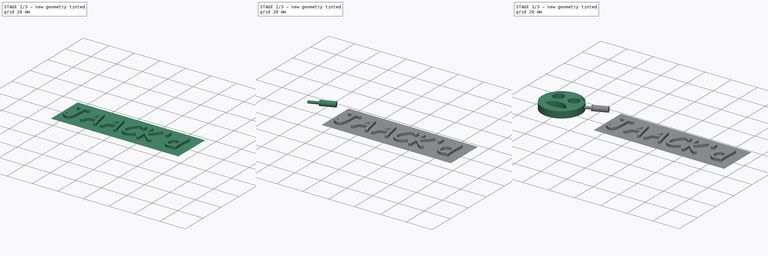
[diagram: build sequence overview — one tinted view per stage of 3, left to right]
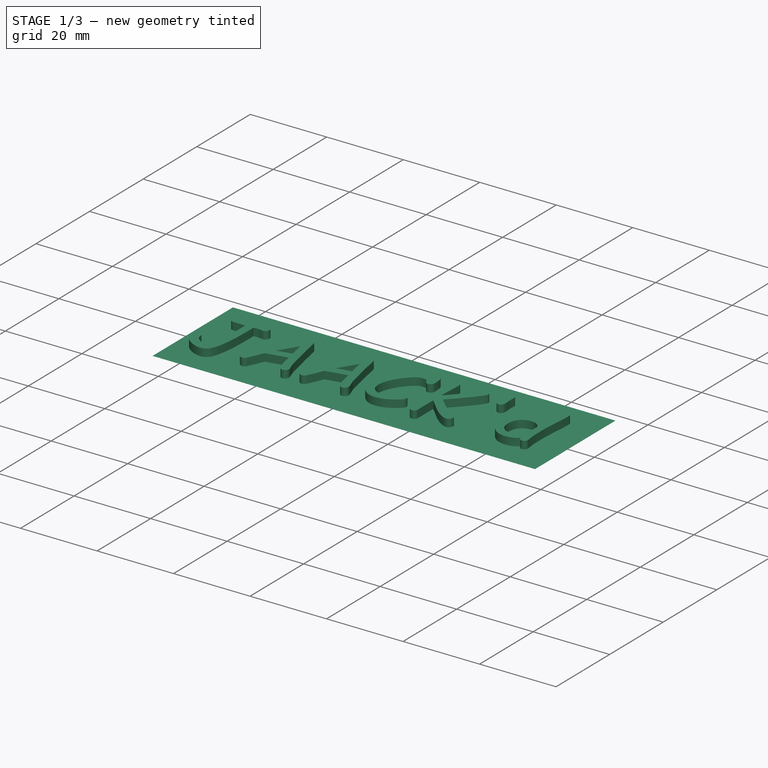
[diagram: stage 1 of 3 — iso view after this stage's code; geometry added in this stage tinted green]
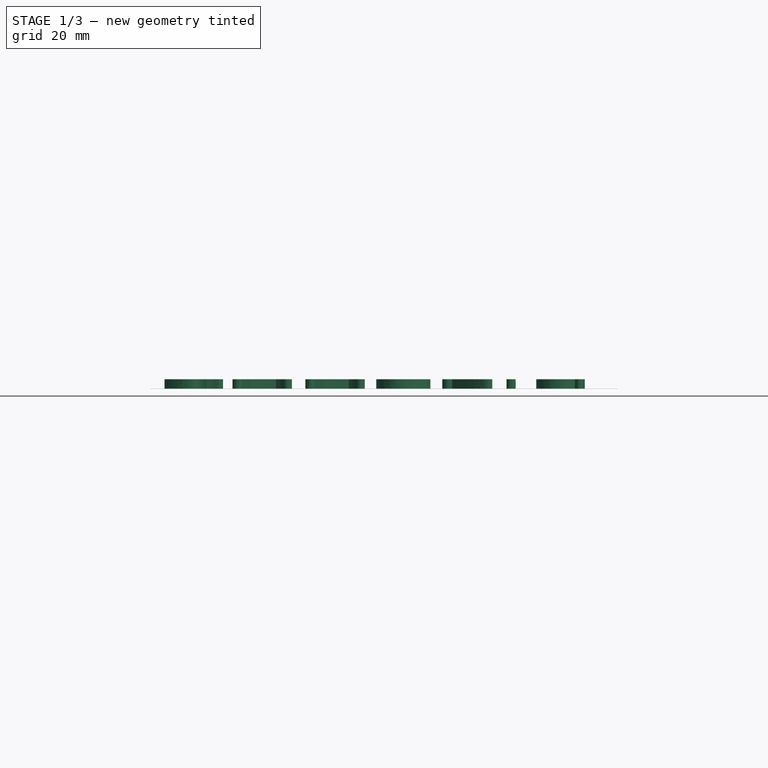
[diagram: stage 1 of 3 — front view after this stage's code; geometry added in this stage tinted green]
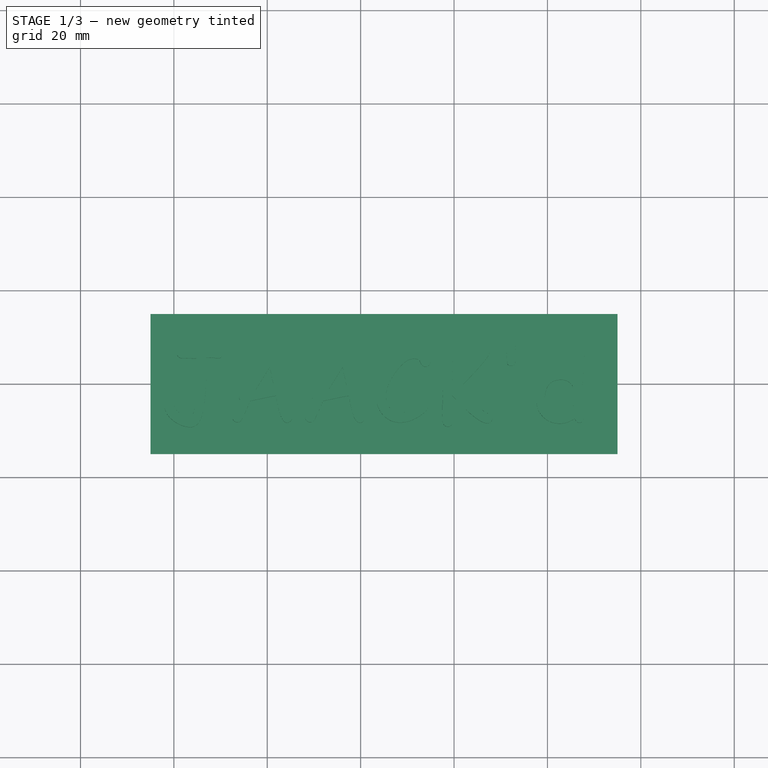
[diagram: stage 1 of 3 — top view after this stage's code; geometry added in this stage tinted green]
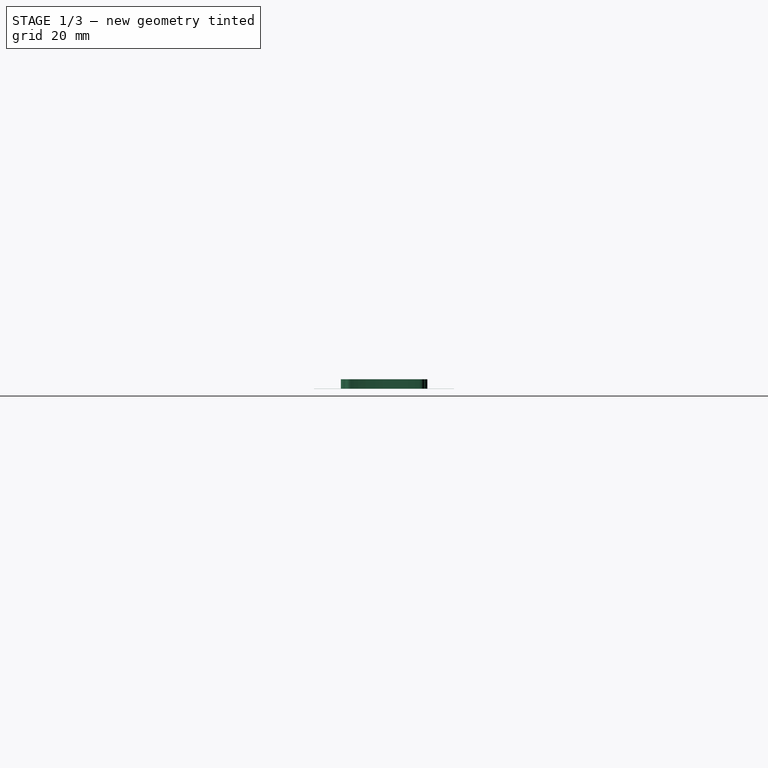
[diagram: stage 1 of 3 — right view after this stage's code; geometry added in this stage tinted green]
FCSTD DOCUMENT  (FreeCAD 1.0R39109 (Git))
Label: Jaackd Logo 2d
License: Creative Commons Attribution 4.0
LicenseURL: https://creativecommons.org/licenses/by/4.0/
objects: PartDesign::Pad×3, Part::Cylinder×3, Sketcher::SketchObject×2, PartDesign::Body×2, App::Part×2, Spreadsheet::Sheet×1, PartDesign::Boolean×1, Part::Part2DObjectPython×1, Measure::MeasurePython×1
note: 21 computed .brp shape members not serialized (recipe doc carries the construction recipe); baked Part::Feature solids carry a one-line shape summary decoded from their .brp

FEATURE [PartDesign::Body] Body
  AllowCompound = false
  Group = -> [Sketch,Pad,Boolean]
  Origin = -> Origin001
  Tip = -> Boolean
FEATURE [App::Part] Part  label="Logo"
  Group = -> [Body]
  Origin = -> Origin
FEATURE [Sketcher::SketchObject] Sketch001
  ArcFitTolerance = 1e-06
  AttachmentSupport = -> [XY_Plane003]
  FullyConstrained = true
  MakeInternals = false
  MapMode = 5
  sketch-geometry (4):
    g0: LineSegment StartX=35 StartY=15 StartZ=0 EndX=35 EndY=-15 EndZ=0
    g1: LineSegment StartX=35 StartY=-15 StartZ=0 EndX=135 EndY=-15 EndZ=0
    g2: LineSegment StartX=135 StartY=-15 StartZ=0 EndX=135 EndY=15 EndZ=0
    g3: LineSegment StartX=135 StartY=15 StartZ=0 EndX=35 EndY=15 EndZ=0
  constraints (11):
    c: Coincident(g0,g1)
    c: Coincident(g1,g2)
    c: Coincident(g2,g3)
    c: Coincident(g3,g0)
    c: Vertical(g0)
    c: Horizontal(g1)
    c: Horizontal(g3)
    c: Distance(g0,g2) = 100
    c: Distance(g1,g3) = 30
    c: DistanceX(g-1,g0) = 35
    c: Symmetric(g2,g1,g-1)
FEATURE [PartDesign::Pad] Pad001
  Direction = (0,0,1)
  Length = 0.01
  Length2 = 10
  Profile = -> Sketch001
  ReferenceAxis = -> Sketch001 [N_Axis]
  Suppressed = false
  Type = 0
  expr: Length = <<config>>.namePlateThickness
FEATURE [Part::Part2DObjectPython] ShapeString  # Draft 2D object (typed FeaturePython)
  FontFile = <path>
  Fuse = false
  Justification = 6
  JustificationReference = 0
  KeepLeftMargin = false
  MakeFace = true
  ObliqueAngle = 0
  Placement = pos=(38,-8,0.01) rot=(0,0,1;0rad)
  ScaleToSize = true
  Size = 16
  String = JAACK'd
  Tracking = 0
  expr: .Placement.Base.z = <<config>>.namePlateThickness
FEATURE [PartDesign::Pad] Pad002
  BaseFeature = -> Pad001
  Direction = (0,0,1)
  Length = 2
  Length2 = 10
  Profile = -> ShapeString
  ReferenceAxis = -> ShapeString [N_Axis]
  Suppressed = false
  Type = 0
FEATURE [PartDesign::Body] Body001  label="NamePlateBody"
  AllowCompound = false
  Group = -> [Sketch001,Pad001,ShapeString,Pad002]
  Origin = -> Origin003
  Tip = -> Pad002
FEATURE [App::Part] Part001  label="NamePlate"
  Group = -> [Body001]
  Origin = -> Origin002
FEATURE [Measure::MeasurePython] Center_of_Mass  label="Center_of_Mass: "  # WARN: FeaturePython — macro-defined, semantics opaque (R4)
  Element = -> Part001 [Body001.Pad001.Sketch001.]
  Placement = pos=(85,0,0) rot=(0,0,1;0rad)
  Result = (85,0,0)
note: 1 file-system path scrubbed to <path> (originals preserved in the JSON sidecar)
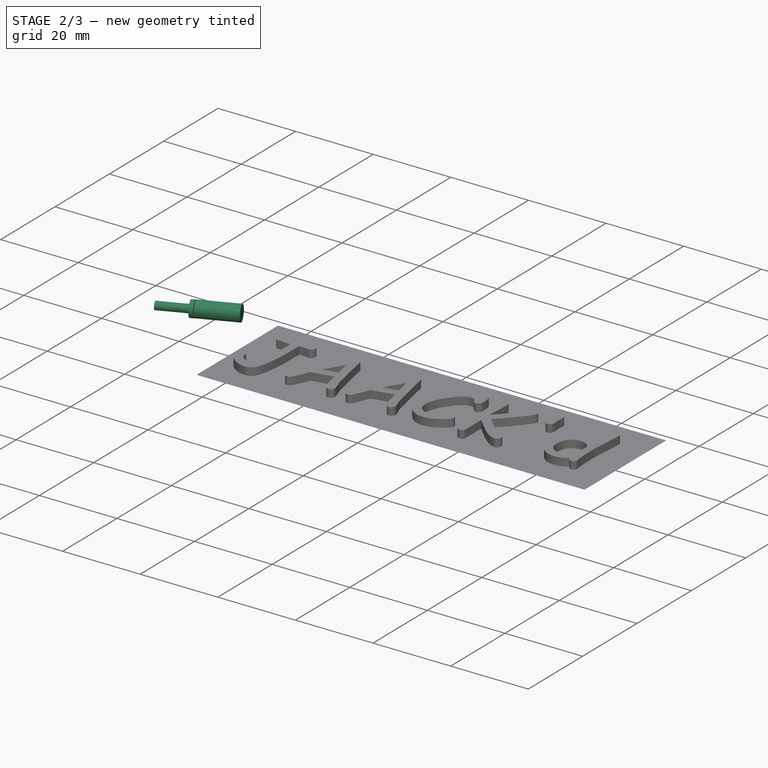
[diagram: stage 2 of 3 — iso view after this stage's code; geometry added in this stage tinted green]
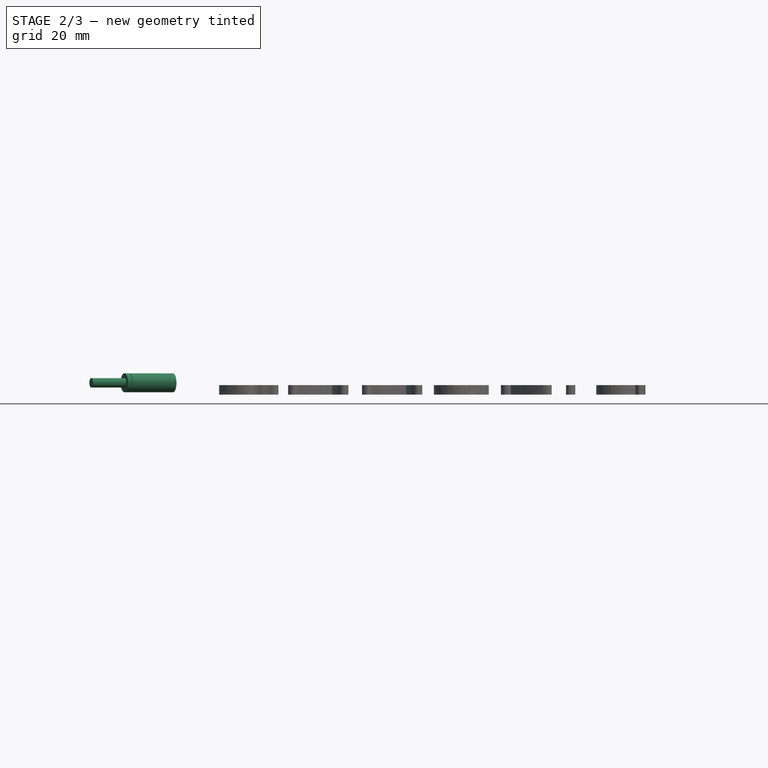
[diagram: stage 2 of 3 — front view after this stage's code; geometry added in this stage tinted green]
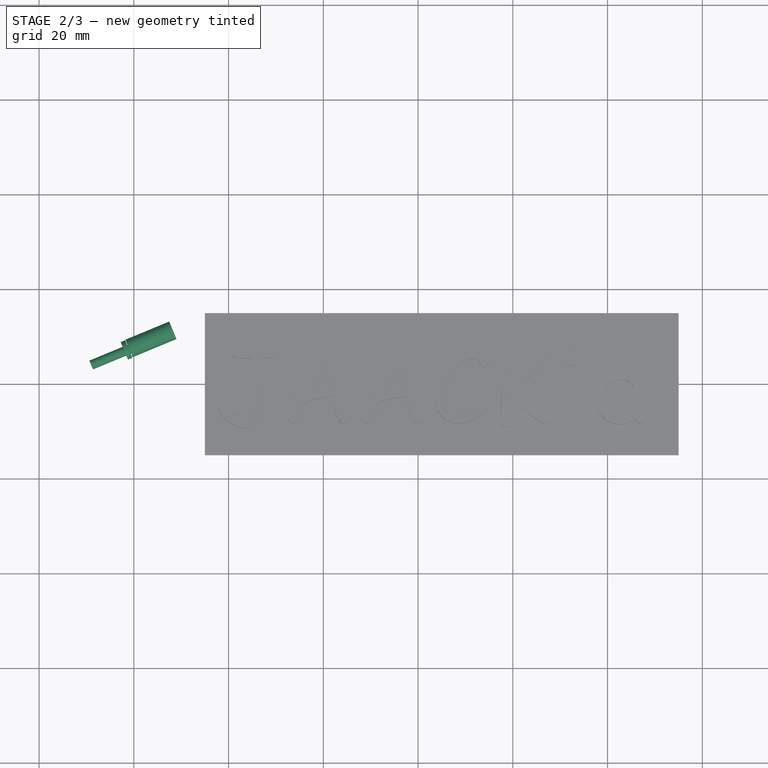
[diagram: stage 2 of 3 — top view after this stage's code; geometry added in this stage tinted green]
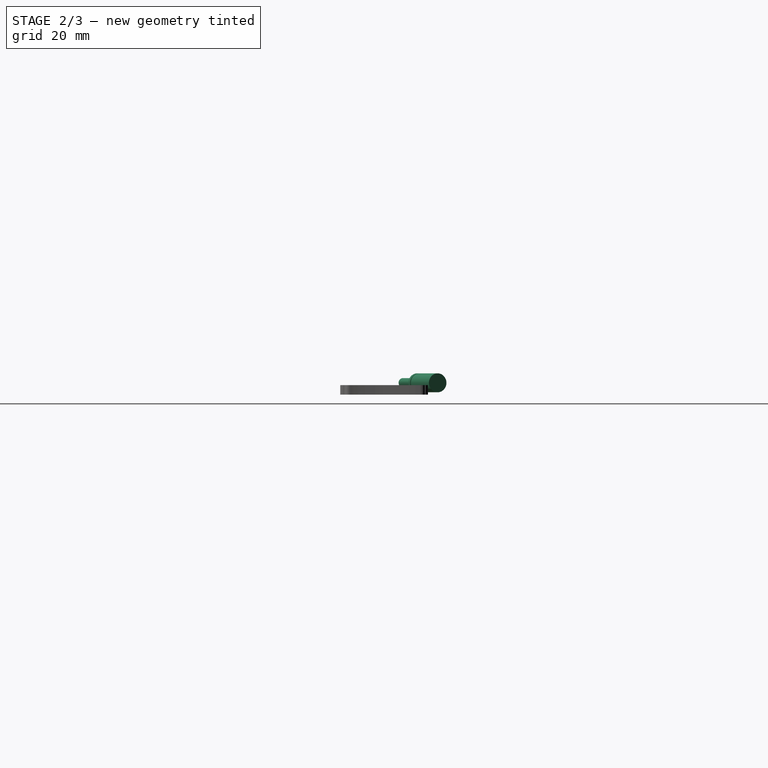
[diagram: stage 2 of 3 — right view after this stage's code; geometry added in this stage tinted green]
FEATURE [Part::Cylinder] Cylinder
  Angle = 360
  AttacherType = Attacher::AttachEngine3D
  FirstAngle = 0
  Height = 13
  Placement = pos=(11,4,2.5) rot=(-0.19148,0.962637,0.19148;1.60887rad)
  Radius = 1
  SecondAngle = 0
FEATURE [Part::Cylinder] Cylinder001
  Angle = 360
  AttacherType = Attacher::AttachEngine3D
  FirstAngle = 0
  Height = 1
  Placement = pos=(18,7,2.5) rot=(-0.19148,0.962637,0.19148;1.60887rad)
  Radius = 2
  SecondAngle = 0
FEATURE [Part::Cylinder] Cylinder002
  Angle = 360
  AttacherType = Attacher::AttachEngine3D
  FirstAngle = 0
  Height = 10
  Placement = pos=(19,7.5,2.5) rot=(-0.19148,0.962637,0.19148;1.60887rad)
  Radius = 2
  SecondAngle = 0
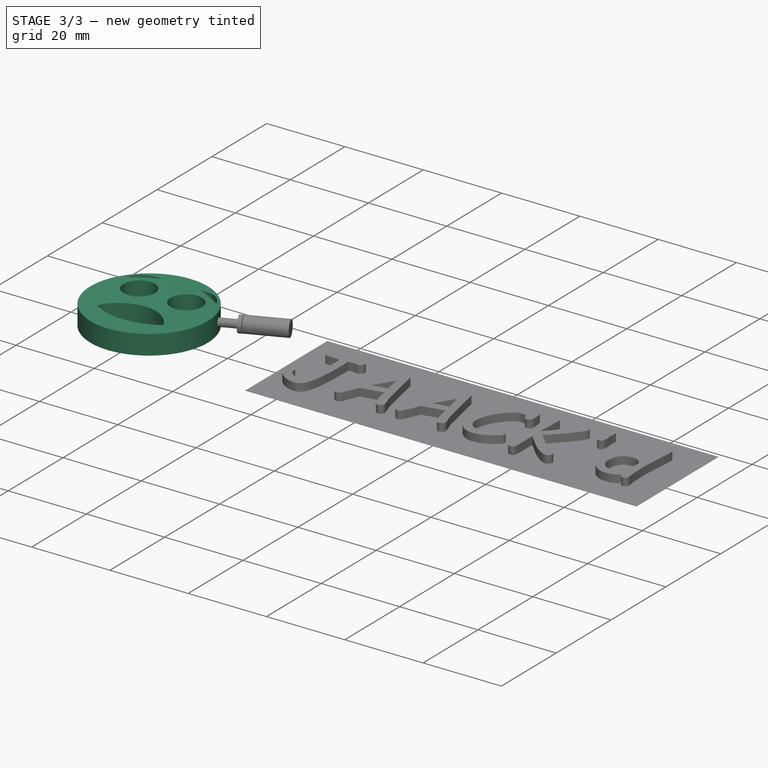
[diagram: stage 3 of 3 — iso view after this stage's code; geometry added in this stage tinted green]
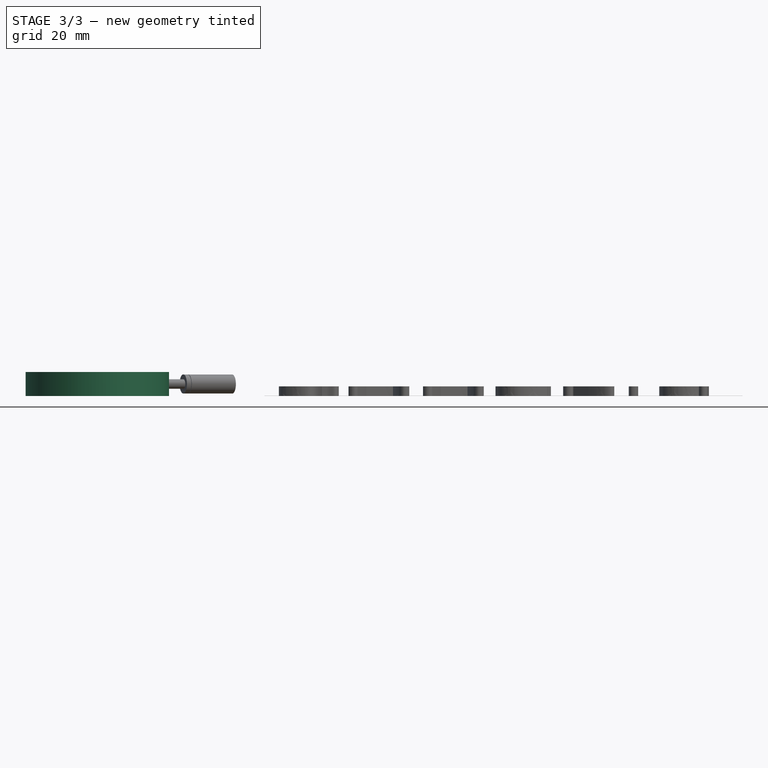
[diagram: stage 3 of 3 — front view after this stage's code; geometry added in this stage tinted green]
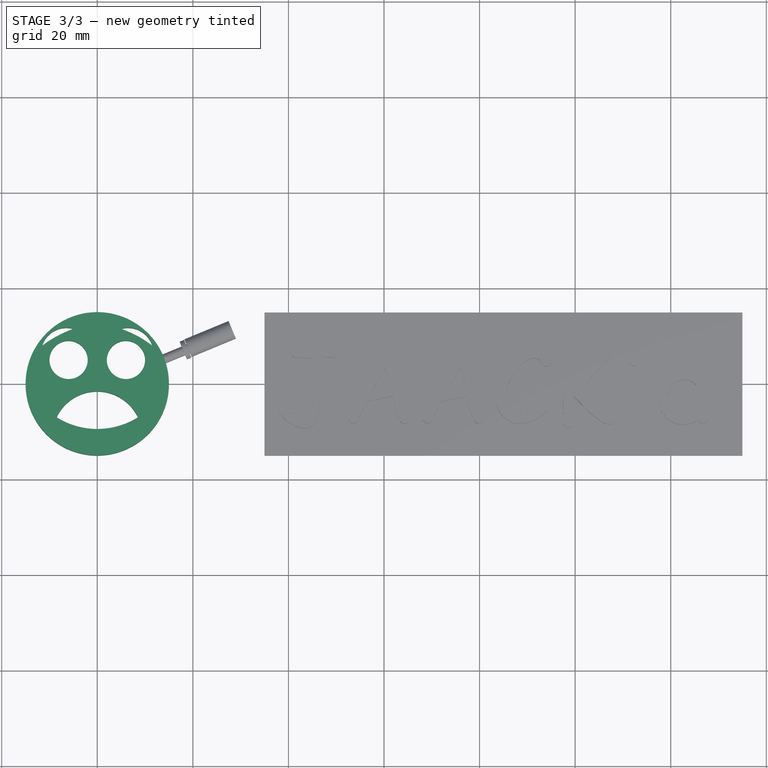
[diagram: stage 3 of 3 — top view after this stage's code; geometry added in this stage tinted green]
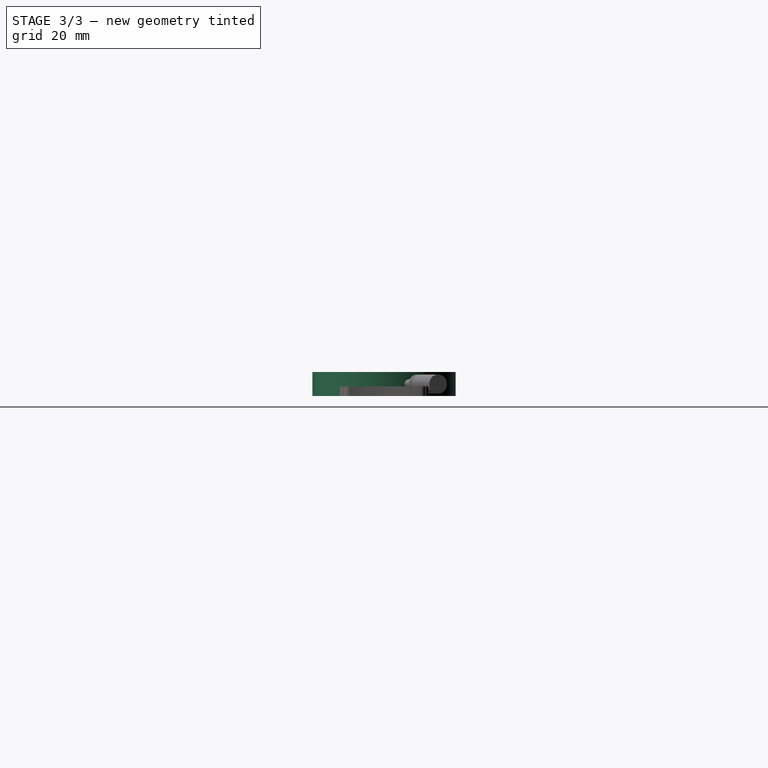
[diagram: stage 3 of 3 — right view after this stage's code; geometry added in this stage tinted green]
FEATURE [Spreadsheet::Sheet] Spreadsheet  label="config"
  cells = A2='outerDiameter; B2='mm; C2(outerDiameter)=30; A3='faceEyeRatio; B3='none; C3(faceEyeRatio)==30 / 8; A4='eyeDiameter; B4='mm; C4(eyeDiameter)==outerDiameter / faceEyeRatio; A5='faceIPRatio; B5='none; C5(faceIPRatio)==30 / 12; A6='interpupilaryDistance; B6='mm; C6(interpupilaryDistance)==outerDiameter / faceIPRatio; A7='faceIESRatio; B7='none; C7(faceIESRatio)==30 / 10; A8='innerEyebrowSeparation; B8='mm; C8(innerEyebrowSeparation)==outerDiameter / faceIESRatio; A9='faceOESRatio; B9='none; C9(faceOESRatio)==30 / 23; A10='outerEyebrowSeparation; B10='mm; C10(outerEyebrowSeparation)==outerDiameter / faceOESRatio; A11='faceIEHRatio; B11='none; C11(faceIEHRatio)==30 / 11.5; A12='innerEyebrowHeight; B12='mm; C12(innerEyebrowHeight)==outerDiameter / faceIEHRatio; A13='faceOEHRatio; B13='none; C13(faceOEHRatio)==30 / 8; A14='outerEyebrowHeight; B14='mm; C14(outerEyebrowHeight)==outerDiameter / faceOEHRatio; A15='facePHRatio; B15='none; C15(facePHRatio)==30 / 5; A16='pupilHeight; B16='mm; C16(pupilHeight)==outerDiameter / facePHRatio; A17='faceBTACHRatio; B17='none; C17(faceBTACHRatio)==30 / 6.4; A18='browTopArcCenterHeight; B18='mm; C18(browTopArcCenterHeight)==outerDiameter / faceBTACHRatio; A19='faceBBACHRatio; B19='none; C19(faceBBACHRatio)==30 / 10.4; A20='browBottomArcCenterHeight; B20='mm; C20(browBottomArcCenterHeight)==outerDiameter / faceBBACHRatio; A21='faceMBAHRatio; B21='none; C21(faceMBAHRatio)==30 / 6.5; A22='mouthBottomArcHeight; B22='mm; C22(mouthBottomArcHeight)==outerDiameter / faceMBAHRatio; A23='faceMTAHRatio; B23='none; C23(faceMTAHRatio)==-30 / 11; A24='mouthTopArcHeight; B24='mm; C24(mouthTopArcHeight)==outerDiameter / faceMTAHRatio; A25='faceMWRatio; B25='none; C25(faceMWRatio)==30 / 17; A26='mouthWidth; B26='mm; C26(mouthWidth)==outerDiameter / faceMWRatio; A27='faceMHRatio; B27='none; C27(faceMHRatio)==30 / 7; A28='mouthHeight; B28='mm; C28(mouthHeight)==outerDiameter / faceMHRatio; A29='namePlateThickness; B29='mm; C29(namePlateThickness)=0.01
FEATURE [Sketcher::SketchObject] Sketch
  ArcFitTolerance = 1e-06
  AttachmentSupport = -> [XY_Plane001]
  FullyConstrained = true
  MakeInternals = false
  MapMode = 5
  expr: Constraints[0] = <<config>>.outerDiameter
  expr: Constraints[15] = <<config>>.interpupilaryDistance / 2
  expr: Constraints[16] = <<config>>.outerEyebrowSeparation / 2
  expr: Constraints[17] = <<config>>.innerEyebrowHeight
  expr: Constraints[18] = <<config>>.outerEyebrowHeight
  expr: Constraints[19] = <<config>>.browTopArcCenterHeight
  expr: Constraints[22] = <<config>>.innerEyebrowSeparation / 2
  expr: Constraints[23] = <<config>>.browBottomArcCenterHeight
  expr: Constraints[24] = <<config>>.mouthWidth / 2
  expr: Constraints[25] = <<config>>.mouthHeight
  expr: Constraints[26] = -<<config>>.mouthTopArcHeight
  expr: Constraints[27] = <<config>>.mouthBottomArcHeight
  expr: Constraints[2] = <<config>>.eyeDiameter
  expr: Constraints[4] = <<config>>.pupilHeight
  sketch-geometry (9):
    g0: Circle CenterX=0 CenterY=0 CenterZ=0 NormalX=0 NormalY=0 NormalZ=1 AngleXU=0 Radius=15
    g1: Circle CenterX=-6 CenterY=5 CenterZ=0 NormalX=0 NormalY=0 NormalZ=1 AngleXU=0 Radius=4
    g2: Circle CenterX=6 CenterY=5 CenterZ=0 NormalX=0 NormalY=0 NormalZ=1 AngleXU=0 Radius=4
    g3: ArcOfCircle CenterX=-6.44615 CenterY=6.4 CenterZ=0 NormalX=0 NormalY=0 NormalZ=1 AngleXU=0 Radius=5.30107 StartAngle=1.29449 EndAngle=2.83499
    g4: ArcOfCircle CenterX=2.6 CenterY=-10.4 CenterZ=0 NormalX=0 NormalY=0 NormalZ=1 AngleXU=0 Radius=23.1812 StartAngle=1.90482 EndAngle=2.22465
    g5: ArcOfCircle CenterX=-2.6 CenterY=-10.4 CenterZ=0 NormalX=0 NormalY=0 NormalZ=1 AngleXU=0 Radius=23.1812 StartAngle=0.916942 EndAngle=1.23677
    g6: ArcOfCircle CenterX=6.44615 CenterY=6.4 CenterZ=0 NormalX=0 NormalY=0 NormalZ=1 AngleXU=0 Radius=5.30107 StartAngle=0.306607 EndAngle=1.8471
    g7: ArcOfCircle CenterX=-3e-16 CenterY=-11 CenterZ=0 NormalX=0 NormalY=0 NormalZ=1 AngleXU=0 Radius=9.39415 StartAngle=0.439843 EndAngle=2.70175
    g8: ArcOfCircle CenterX=-7e-16 CenterY=6.5 CenterZ=0 NormalX=0 NormalY=0 NormalZ=1 AngleXU=0 Radius=15.9531 StartAngle=4.15047 EndAngle=5.27431
  constraints (28):
    c: Diameter(g0) = 30
    c: Coincident(g0,g-1)
    c: Diameter(g2) = 8
    c: Symmetric(g1,g2,g-2)
    c: DistanceY(g0,g1) = 5
    c: Coincident(g4,g3)
    c: Coincident(g4,g3)
    c: Coincident(g6,g5)
    c: Coincident(g6,g5)
    c: Symmetric(g3,g5,g-2)
    c: Symmetric(g3,g5,g-2)
    c: Coincident(g8,g7)
    c: Coincident(g8,g7)
    c: Symmetric(g7,g7,g-2)
    c: Equal(g1,g2)
    c: DistanceX(g0,g2) = 6
    c: DistanceX(g0,g5) = 11.5
    c: DistanceY(g0,g5) = 11.5
    c: DistanceY(g0,g5) = 8
    c: DistanceY(g0,g6) = 6.4
    c: Horizontal(g4,g5)
    c: Horizontal(g6,g3)
    c: DistanceX(g0,g5) = 5
    c: DistanceY(g4,g0) = 10.4
    c: DistanceX(g0,g7) = 8.5
    c: DistanceY(g7,g0) = 7
    c: DistanceY(g7,g0) = 11
    c: DistanceY(g0,g8) = 6.5
FEATURE [PartDesign::Pad] Pad
  Direction = (0,0,1)
  Length = 5
  Length2 = 10
  Profile = -> Sketch
  ReferenceAxis = -> Sketch [N_Axis]
  Suppressed = false
  Type = 0
FEATURE [PartDesign::Boolean] Boolean
  BaseFeature = -> Pad
  Group = -> [Cylinder,Cylinder001,Cylinder002]
  Suppressed = false
  Type = 0
  UsePlacement = true
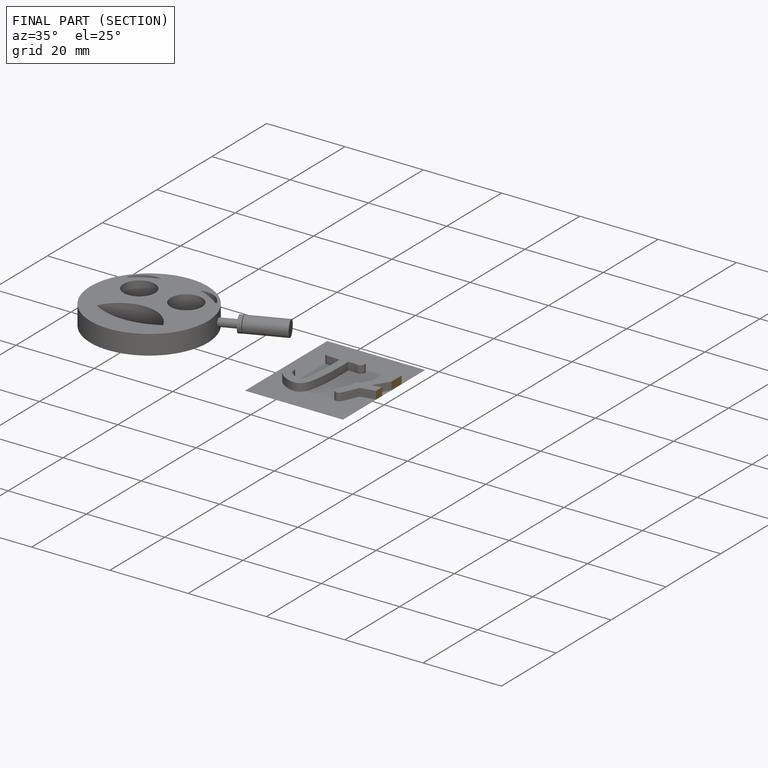
[diagram: finished part — half-section view (interior)]
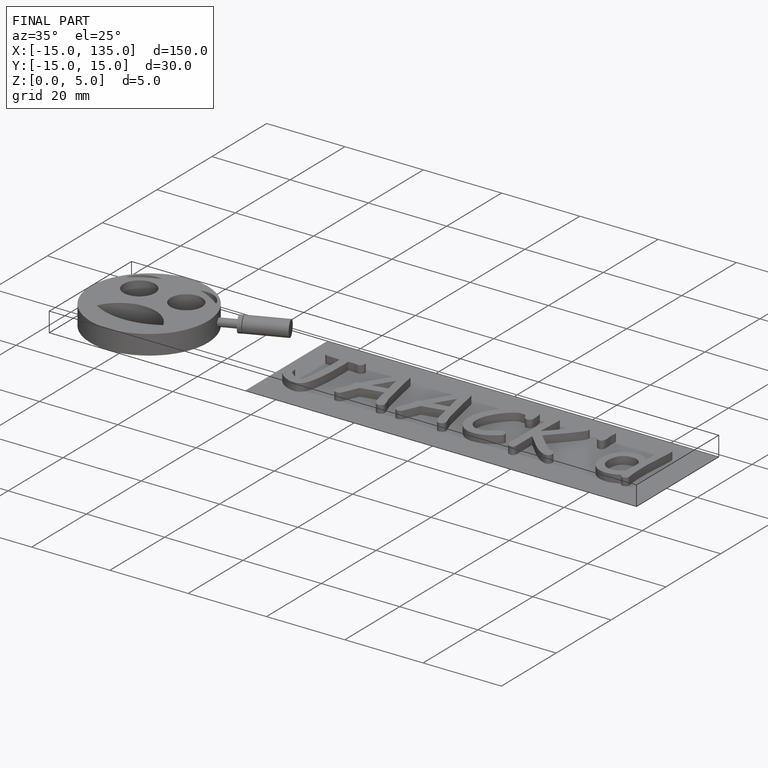
[diagram: finished part — iso view with bounding-box wireframe]
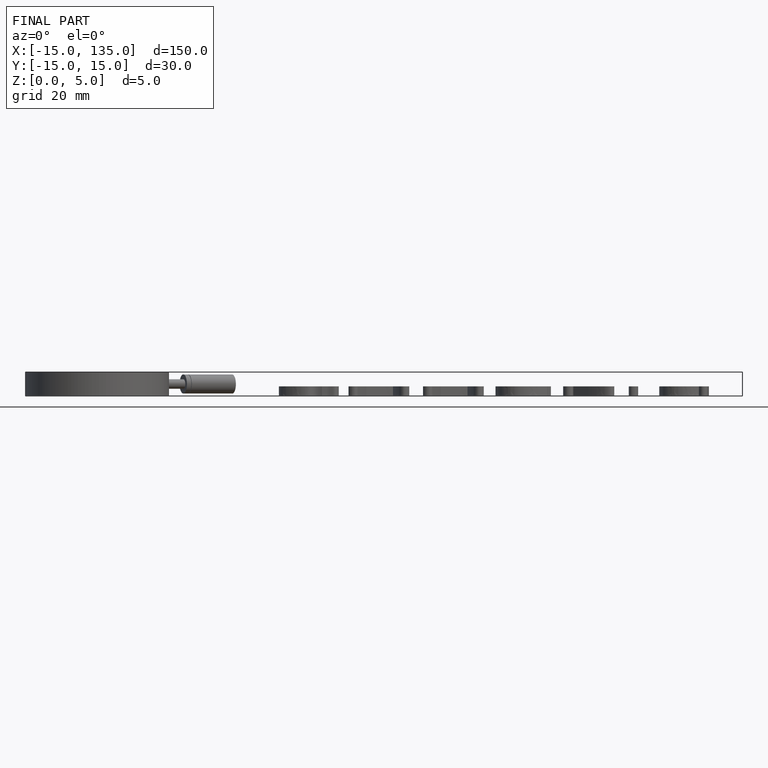
[diagram: finished part — front view with bounding-box wireframe]
